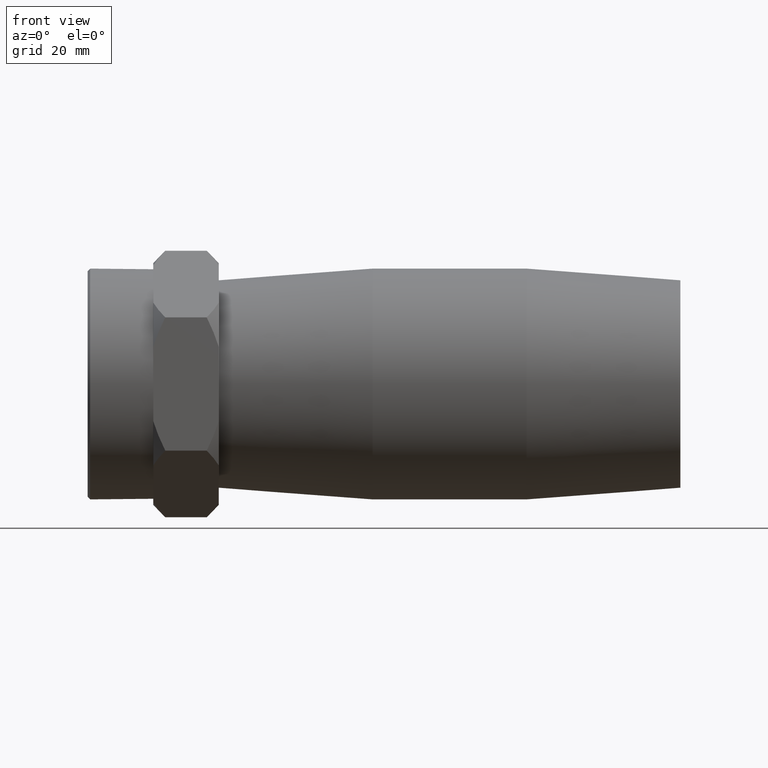
[diagram: clean part render]
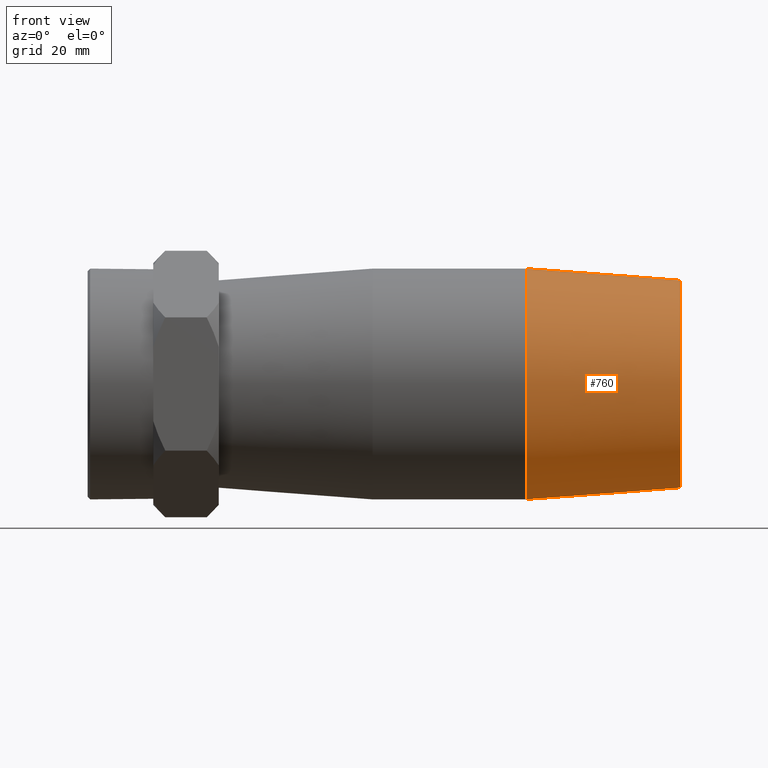
[diagram: same view with one face highlighted and labeled with its STEP entity id]
A machine part, front view. The second image highlights one B-rep face of the part: STEP entity #760.
In plain terms, the highlighted conical surface has half-angle 4.289 deg.
Its self-contained STEP definition (entity closure, byte-faithful):
#15=B_SPLINE_CURVE_WITH_KNOTS('',3,(#1338,#1339,#1340,#1341,#1342,#1343,
#1344,#1345,#1346,#1347,#1348,#1349,#1350,#1351,#1352,#1353,#1354,#1355,
#1356,#1357,#1358,#1359,#1360,#1361,#1362,#1363,#1364,#1365,#1366,#1367,
#1368,#1369,#1370,#1371),.UNSPECIFIED.,.T.,.F.,(4,2,2,2,2,2,2,2,2,2,2,2,
2,2,2,2,4),(0.,0.356889273461092,0.713778546922183,1.06142789072653,1.40907723453087,
1.75672657833522,2.10437592213956,2.46126519560065,2.81815446906174,3.14996214505578,
3.48176982104981,3.81576497153725,4.14976012202468,4.48375527251212,4.81775042299955,
5.14955809899358,5.48136577498762),.UNSPECIFIED.);
#145=FACE_BOUND('',#278,.T.);
#146=FACE_BOUND('',#279,.T.);
#201=FACE_OUTER_BOUND('',#277,.T.);
#277=EDGE_LOOP('',(#678));
#278=EDGE_LOOP('',(#679));
#279=EDGE_LOOP('',(#680));
#293=CIRCLE('',#772,19.8);
#331=CIRCLE('',#856,22.);
#338=VERTEX_POINT('',#1098);
#400=VERTEX_POINT('',#1337);
#402=VERTEX_POINT('',#1410);
#409=EDGE_CURVE('',#338,#338,#293,.T.);
#495=EDGE_CURVE('',#400,#400,#15,.T.);
#497=EDGE_CURVE('',#402,#402,#331,.T.);
#678=ORIENTED_EDGE('',*,*,#409,.F.);
#679=ORIENTED_EDGE('',*,*,#495,.T.);
#680=ORIENTED_EDGE('',*,*,#497,.T.);
#709=CONICAL_SURFACE('',#858,20.9,4.28915332881902);
#760=ADVANCED_FACE('',(#201,#145,#146),#709,.T.);
#772=AXIS2_PLACEMENT_3D('',#1099,#877,#878);
#856=AXIS2_PLACEMENT_3D('',#1411,#1069,#1070);
#858=AXIS2_PLACEMENT_3D('',#1414,#1073,#1074);
#877=DIRECTION('center_axis',(1.,0.,0.));
#878=DIRECTION('ref_axis',(0.,0.,-1.));
#1069=DIRECTION('center_axis',(1.,0.,0.));
#1070=DIRECTION('ref_axis',(0.,0.,-1.));
#1073=DIRECTION('center_axis',(-1.,0.,0.));
#1074=DIRECTION('ref_axis',(0.,1.,0.));
#1098=CARTESIAN_POINT('',(44.,19.8,0.));
#1099=CARTESIAN_POINT('Origin',(44.,0.,0.));
#1337=CARTESIAN_POINT('',(31.1480691191239,18.6965448376289,9.03208387179682));
#1338=CARTESIAN_POINT('Ctrl Pts',(31.1480691191239,18.6965448376289,9.03208387179682));
#1339=CARTESIAN_POINT('Ctrl Pts',(29.9617699951172,18.7766587623982,9.07078597927707));
#1340=CARTESIAN_POINT('Ctrl Pts',(28.7178555670037,18.9905443826303,8.85391337024432));
#1341=CARTESIAN_POINT('Ctrl Pts',(26.4549368650303,19.5766546366602,7.93258169326057));
#1342=CARTESIAN_POINT('Ctrl Pts',(25.4335099193278,19.9406098387263,7.22883268441272));
#1343=CARTESIAN_POINT('Ctrl Pts',(23.8430062886646,20.5746037543342,5.62146715299862));
#1344=CARTESIAN_POINT('Ctrl Pts',(23.1555822687331,20.8901252173948,4.61364835266122));
#1345=CARTESIAN_POINT('Ctrl Pts',(22.2346424782388,21.3298060144038,2.3829352502623));
#1346=CARTESIAN_POINT('Ctrl Pts',(22.0020942229845,21.4498429332762,1.15883114601448));
#1347=CARTESIAN_POINT('Ctrl Pts',(22.0020942229845,21.4498429332762,-1.15883114601448));
#1348=CARTESIAN_POINT('Ctrl Pts',(22.2346424782388,21.3298060144038,-2.3829352502623));
#1349=CARTESIAN_POINT('Ctrl Pts',(23.1555822687331,20.8901252173948,-4.61364835266122));
#1350=CARTESIAN_POINT('Ctrl Pts',(23.8430062886646,20.5746037543342,-5.62146715299862));
#1351=CARTESIAN_POINT('Ctrl Pts',(25.4335099193278,19.9406098387263,-7.22883268441272));
#1352=CARTESIAN_POINT('Ctrl Pts',(26.4549368650303,19.5766546366602,-7.93258169326057));
#1353=CARTESIAN_POINT('Ctrl Pts',(28.7178555670037,18.9905443826303,-8.85391337024432));
#1354=CARTESIAN_POINT('Ctrl Pts',(29.9617699951172,18.7766587623982,-9.07078597927707));
#1355=CARTESIAN_POINT('Ctrl Pts',(32.250997070847,18.6220611891441,-8.99610168546055));
#1356=CARTESIAN_POINT('Ctrl Pts',(33.4155826616688,18.6567414610268,-8.73355523723198));
#1357=CARTESIAN_POINT('Ctrl Pts',(35.5323014706773,18.9079572222697,-7.76689206375197));
#1358=CARTESIAN_POINT('Ctrl Pts',(36.4857046957806,19.1165814784696,-7.06351707436218));
#1359=CARTESIAN_POINT('Ctrl Pts',(37.9849692805738,19.5138666663622,-5.47611276286401));
#1360=CARTESIAN_POINT('Ctrl Pts',(38.6352299709117,19.7304046332678,-4.47860622792788));
#1361=CARTESIAN_POINT('Ctrl Pts',(39.5000911771769,20.0362459300312,-2.29760766565729));
#1362=CARTESIAN_POINT('Ctrl Pts',(39.7141259256652,20.1214405555751,-1.11331716829145));
#1363=CARTESIAN_POINT('Ctrl Pts',(39.7141259256652,20.1214405555751,1.11331716829145));
#1364=CARTESIAN_POINT('Ctrl Pts',(39.5000911771769,20.0362459300312,2.2976076656573));
#1365=CARTESIAN_POINT('Ctrl Pts',(38.6352299709117,19.7304046332678,4.47860622792788));
#1366=CARTESIAN_POINT('Ctrl Pts',(37.9849692805738,19.5138666663622,5.47611276286401));
#1367=CARTESIAN_POINT('Ctrl Pts',(36.4857046957806,19.1165814784696,7.06351707436218));
#1368=CARTESIAN_POINT('Ctrl Pts',(35.5323014706773,18.9079572222697,7.76689206375197));
#1369=CARTESIAN_POINT('Ctrl Pts',(33.4155826616688,18.6567414610268,8.73355523723198));
#1370=CARTESIAN_POINT('Ctrl Pts',(32.250997070847,18.6220611891441,8.99610168546055));
#1371=CARTESIAN_POINT('Ctrl Pts',(31.1480691191239,18.6965448376289,9.03208387179682));
#1410=CARTESIAN_POINT('',(14.6666666666667,22.,0.));
#1411=CARTESIAN_POINT('Origin',(14.6666666666667,0.,0.));
#1414=CARTESIAN_POINT('Origin',(29.3333333333333,0.,0.));